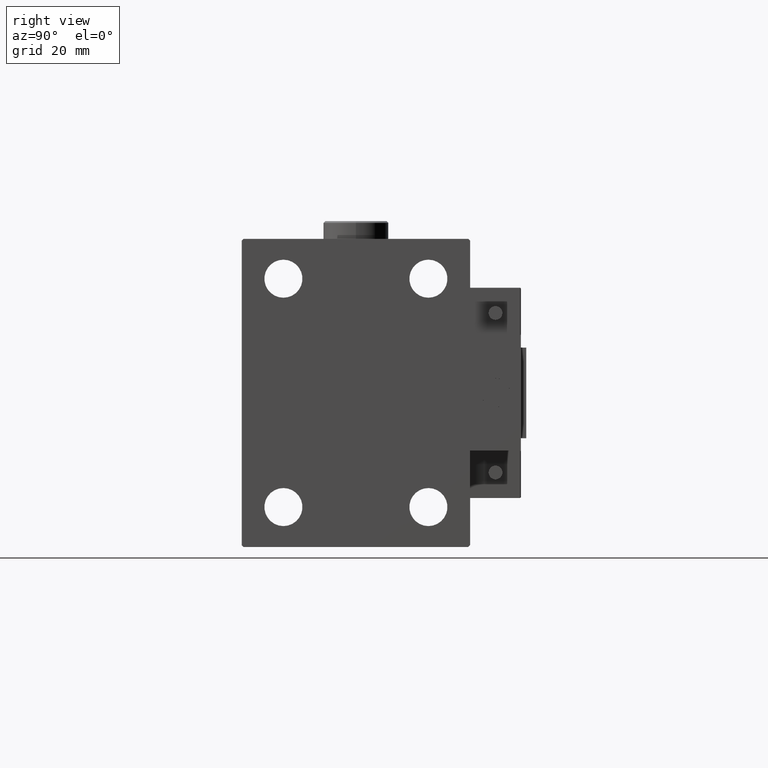
[diagram: clean part render]
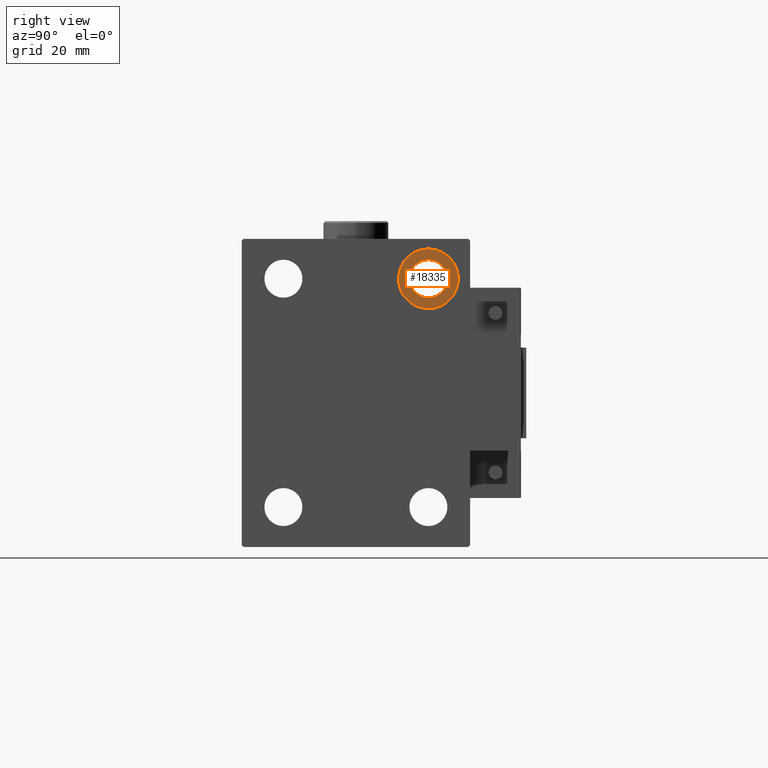
[diagram: same view with one face highlighted and labeled with its STEP entity id]
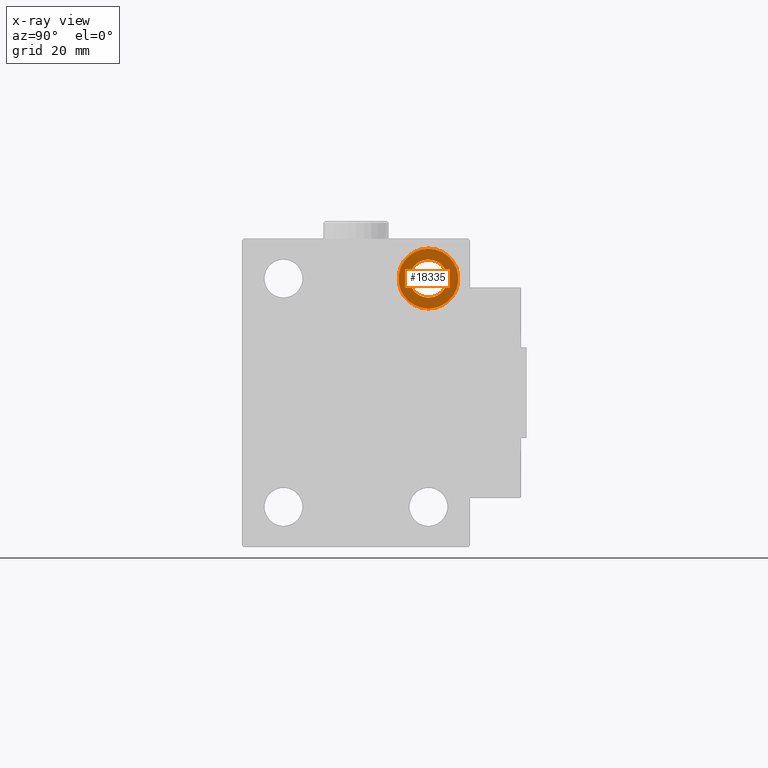
[diagram: x-ray of the same camera — body ghosted, the highlighted face saturated]
A machine part, right view. The second image highlights one B-rep face of the part: STEP entity #18335.
The next image is the same camera in x-ray: the body ghosted, the highlighted face saturated — about 0% of this face is hidden behind the body in this view.
In plain terms, the highlighted planar face has unit normal (1, 0, 0).
Its self-contained STEP definition (entity closure, byte-faithful):
#783 = AXIS2_PLACEMENT_3D ( 'NONE', #50555, #29670, #7038 ) ;
#2533 = CIRCLE ( 'NONE', #5019, 5.249999999999997335 ) ;
#3635 = CARTESIAN_POINT ( 'NONE',  ( 77.00000000000000000, 20.00000000000000355, 31.50000000000000000 ) ) ;
#4136 = CARTESIAN_POINT ( 'NONE',  ( 77.00000000000000000, 20.00000000000000355, 31.50000000000000000 ) ) ;
#5019 = AXIS2_PLACEMENT_3D ( 'NONE', #3635, #39825, #19497 ) ;
#5328 = ORIENTED_EDGE ( 'NONE', *, *, #5411, .F. ) ;
#5411 = EDGE_CURVE ( 'NONE', #50857, #7716, #32972, .T. ) ;
#5920 = AXIS2_PLACEMENT_3D ( 'NONE', #16275, #8989, #12637 ) ;
#7038 = DIRECTION ( 'NONE',  ( 0.000000000000000000, 0.000000000000000000, -1.000000000000000000 ) ) ;
#7716 = VERTEX_POINT ( 'NONE', #49440 ) ;
#8738 = FACE_BOUND ( 'NONE', #50996, .T. ) ;
#8989 = DIRECTION ( 'NONE',  ( 1.000000000000000000, 0.000000000000000000, -0.000000000000000000 ) ) ;
#9225 = ORIENTED_EDGE ( 'NONE', *, *, #14828, .T. ) ;
#12637 = DIRECTION ( 'NONE',  ( 0.000000000000000000, 0.000000000000000000, 1.000000000000000000 ) ) ;
#13445 = DIRECTION ( 'NONE',  ( -1.000000000000000000, -0.000000000000000000, -0.000000000000000000 ) ) ;
#14828 = EDGE_CURVE ( 'NONE', #37202, #26839, #25690, .T. ) ;
#14914 = DIRECTION ( 'NONE',  ( -1.000000000000000000, -0.000000000000000000, -0.000000000000000000 ) ) ;
#15211 = CIRCLE ( 'NONE', #46035, 8.249999999999992895 ) ;
#16099 = EDGE_CURVE ( 'NONE', #26839, #37202, #2533, .T. ) ;
#16113 = DIRECTION ( 'NONE',  ( 0.000000000000000000, 0.000000000000000000, 1.000000000000000000 ) ) ;
#16275 = CARTESIAN_POINT ( 'NONE',  ( 77.00000000000000000, 0.000000000000000000, 0.000000000000000000 ) ) ;
#18335 = ADVANCED_FACE ( 'NONE', ( #35800, #8738 ), #47582, .T. ) ;
#19497 = DIRECTION ( 'NONE',  ( 0.000000000000000000, 0.000000000000000000, -1.000000000000000000 ) ) ;
#20506 = CARTESIAN_POINT ( 'NONE',  ( 77.00000000000000000, 20.00000000000000355, 23.25000000000000355 ) ) ;
#25690 = CIRCLE ( 'NONE', #783, 5.249999999999997335 ) ;
#25754 = EDGE_CURVE ( 'NONE', #7716, #50857, #15211, .T. ) ;
#26839 = VERTEX_POINT ( 'NONE', #34443 ) ;
#27420 = ORIENTED_EDGE ( 'NONE', *, *, #16099, .T. ) ;
#28304 = EDGE_LOOP ( 'NONE', ( #5328, #42219 ) ) ;
#28798 = CARTESIAN_POINT ( 'NONE',  ( 77.00000000000000000, 20.00000000000000355, 31.50000000000000000 ) ) ;
#29670 = DIRECTION ( 'NONE',  ( -1.000000000000000000, -0.000000000000000000, -0.000000000000000000 ) ) ;
#32972 = CIRCLE ( 'NONE', #35459, 8.249999999999992895 ) ;
#34443 = CARTESIAN_POINT ( 'NONE',  ( 77.00000000000000000, 20.00000000000000355, 36.75000000000000000 ) ) ;
#35459 = AXIS2_PLACEMENT_3D ( 'NONE', #28798, #13445, #44219 ) ;
#35800 = FACE_OUTER_BOUND ( 'NONE', #28304, .T. ) ;
#37202 = VERTEX_POINT ( 'NONE', #40654 ) ;
#39825 = DIRECTION ( 'NONE',  ( -1.000000000000000000, -0.000000000000000000, -0.000000000000000000 ) ) ;
#40654 = CARTESIAN_POINT ( 'NONE',  ( 77.00000000000000000, 20.00000000000000355, 26.25000000000000355 ) ) ;
#42219 = ORIENTED_EDGE ( 'NONE', *, *, #25754, .F. ) ;
#44219 = DIRECTION ( 'NONE',  ( 0.000000000000000000, 0.000000000000000000, 1.000000000000000000 ) ) ;
#46035 = AXIS2_PLACEMENT_3D ( 'NONE', #4136, #14914, #16113 ) ;
#47582 = PLANE ( 'NONE',  #5920 ) ;
#49440 = CARTESIAN_POINT ( 'NONE',  ( 77.00000000000000000, 20.00000000000000355, 39.74999999999999289 ) ) ;
#50555 = CARTESIAN_POINT ( 'NONE',  ( 77.00000000000000000, 20.00000000000000355, 31.50000000000000000 ) ) ;
#50857 = VERTEX_POINT ( 'NONE', #20506 ) ;
#50996 = EDGE_LOOP ( 'NONE', ( #27420, #9225 ) ) ;